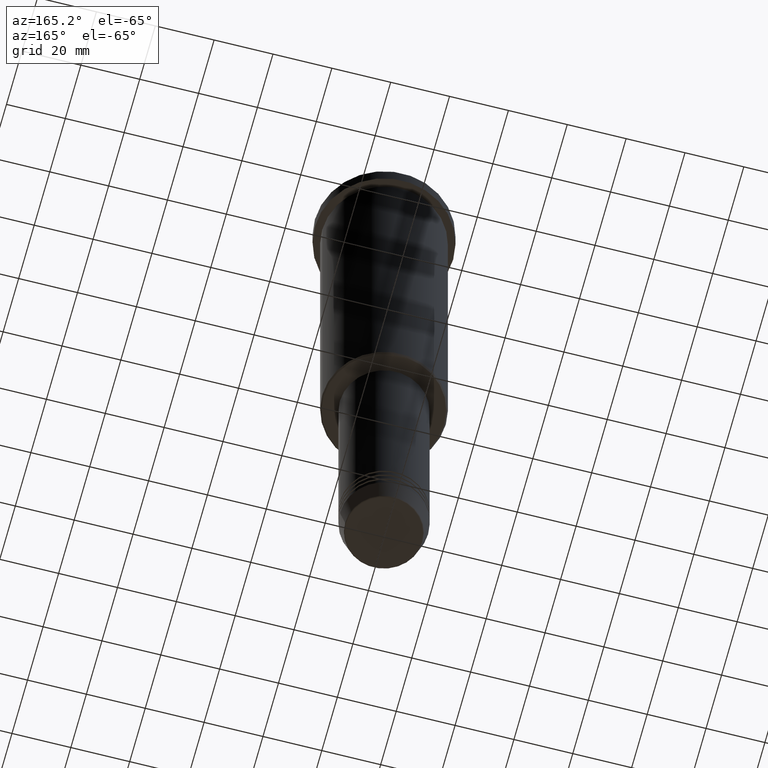
[diagram: clean part render]
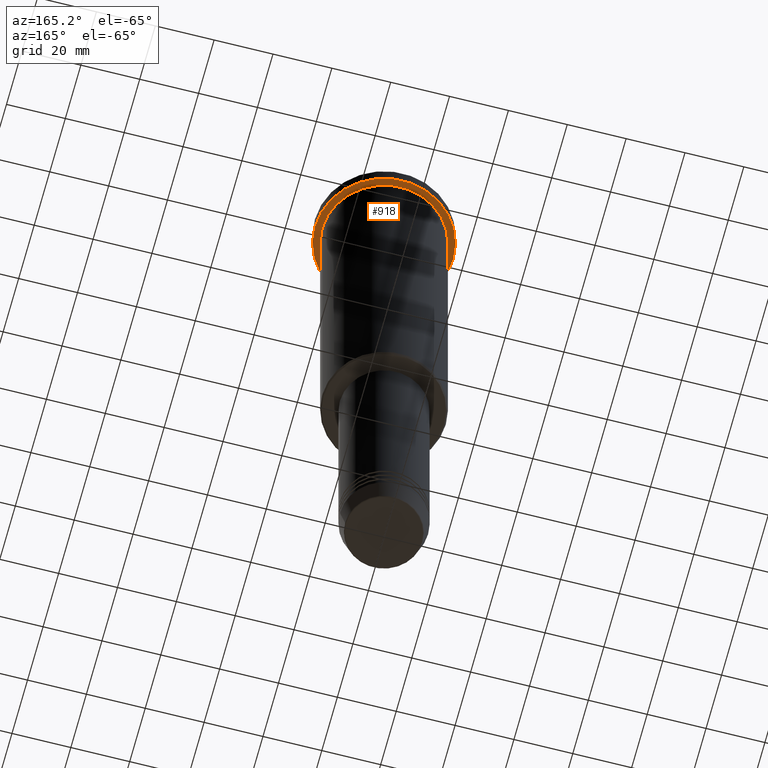
[diagram: same view with one face highlighted and labeled with its STEP entity id]
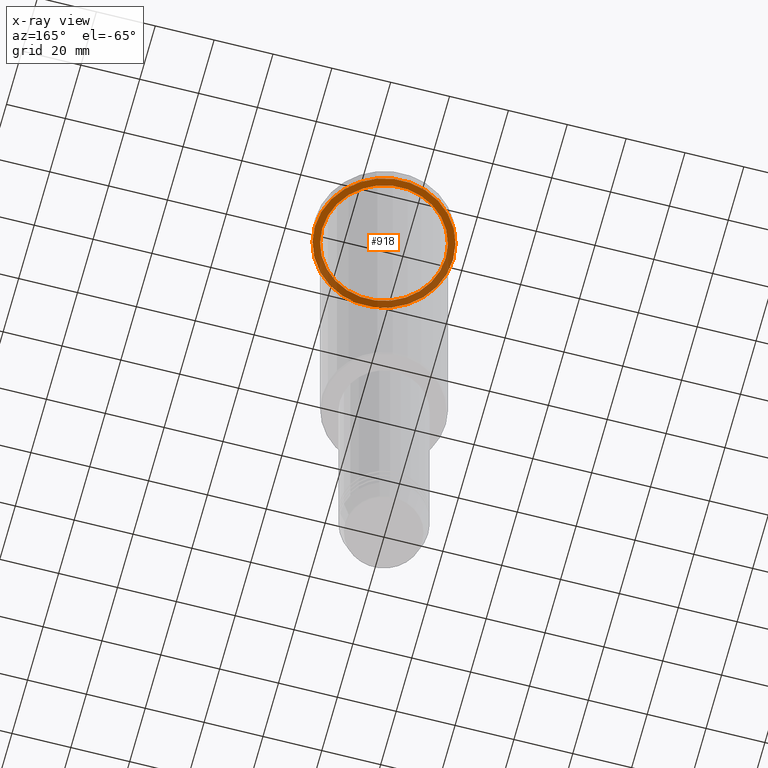
[diagram: x-ray of the same camera — body ghosted, the highlighted face saturated]
A machine part, auxiliary view. The second image highlights one B-rep face of the part: STEP entity #918.
The next image is the same camera in x-ray: the body ghosted, the highlighted face saturated — about 39% of this face is hidden behind the body in this view.
In plain terms, the highlighted planar face has unit normal (0, 0, -1).
Its self-contained STEP definition (entity closure, byte-faithful):
#30 = AXIS2_PLACEMENT_3D ( 'NONE', #386, #648, #1092 ) ;
#42 = EDGE_CURVE ( 'NONE', #107, #220, #1103, .T. ) ;
#47 = DIRECTION ( 'NONE',  ( 0.000000000000000000, 0.000000000000000000, -1.000000000000000000 ) ) ;
#76 = CARTESIAN_POINT ( 'NONE',  ( -21.00000000000000000, 0.000000000000000000, -5.999999999999994671 ) ) ;
#88 = EDGE_CURVE ( 'NONE', #220, #107, #1012, .T. ) ;
#107 = VERTEX_POINT ( 'NONE', #1049 ) ;
#188 = CARTESIAN_POINT ( 'NONE',  ( 0.000000000000000000, 0.000000000000000000, -5.999999999999994671 ) ) ;
#203 = DIRECTION ( 'NONE',  ( -1.000000000000000000, 0.000000000000000000, 0.000000000000000000 ) ) ;
#220 = VERTEX_POINT ( 'NONE', #302 ) ;
#284 = CARTESIAN_POINT ( 'NONE',  ( 0.000000000000000000, 0.000000000000000000, -5.999999999999994671 ) ) ;
#302 = CARTESIAN_POINT ( 'NONE',  ( 23.50000000000000000, 0.000000000000000000, -5.999999999999994671 ) ) ;
#377 = ORIENTED_EDGE ( 'NONE', *, *, #1158, .T. ) ;
#386 = CARTESIAN_POINT ( 'NONE',  ( 0.000000000000000000, 0.000000000000000000, -5.999999999999994671 ) ) ;
#429 = ORIENTED_EDGE ( 'NONE', *, *, #511, .T. ) ;
#467 = VERTEX_POINT ( 'NONE', #743 ) ;
#486 = EDGE_LOOP ( 'NONE', ( #429, #377 ) ) ;
#511 = EDGE_CURVE ( 'NONE', #778, #467, #916, .T. ) ;
#540 = CIRCLE ( 'NONE', #30, 21.00000000000000000 ) ;
#544 = DIRECTION ( 'NONE',  ( -0.000000000000000000, -0.000000000000000000, 1.000000000000000000 ) ) ;
#588 = CARTESIAN_POINT ( 'NONE',  ( 0.000000000000000000, 0.000000000000000000, -5.999999999999994671 ) ) ;
#594 = AXIS2_PLACEMENT_3D ( 'NONE', #188, #544, #903 ) ;
#607 = FACE_OUTER_BOUND ( 'NONE', #793, .T. ) ;
#648 = DIRECTION ( 'NONE',  ( -0.000000000000000000, -0.000000000000000000, 1.000000000000000000 ) ) ;
#685 = CARTESIAN_POINT ( 'NONE',  ( 0.000000000000000000, 23.50000000000000000, -5.999999999999994671 ) ) ;
#688 = DIRECTION ( 'NONE',  ( -1.000000000000000000, 0.000000000000000000, -0.000000000000000000 ) ) ;
#743 = CARTESIAN_POINT ( 'NONE',  ( 21.00000000000000000, 2.571758278209441661E-15, -5.999999999999994671 ) ) ;
#745 = ORIENTED_EDGE ( 'NONE', *, *, #42, .F. ) ;
#767 = AXIS2_PLACEMENT_3D ( 'NONE', #284, #1008, #888 ) ;
#778 = VERTEX_POINT ( 'NONE', #76 ) ;
#793 = EDGE_LOOP ( 'NONE', ( #798, #745 ) ) ;
#798 = ORIENTED_EDGE ( 'NONE', *, *, #88, .F. ) ;
#821 = AXIS2_PLACEMENT_3D ( 'NONE', #685, #47, #688 ) ;
#880 = FACE_BOUND ( 'NONE', #486, .T. ) ;
#888 = DIRECTION ( 'NONE',  ( 1.000000000000000000, 0.000000000000000000, 0.000000000000000000 ) ) ;
#903 = DIRECTION ( 'NONE',  ( 1.000000000000000000, 0.000000000000000000, 0.000000000000000000 ) ) ;
#916 = CIRCLE ( 'NONE', #1084, 21.00000000000000000 ) ;
#918 = ADVANCED_FACE ( 'NONE', ( #880, #607 ), #1135, .T. ) ;
#943 = DIRECTION ( 'NONE',  ( -0.000000000000000000, -0.000000000000000000, 1.000000000000000000 ) ) ;
#1008 = DIRECTION ( 'NONE',  ( -0.000000000000000000, -0.000000000000000000, 1.000000000000000000 ) ) ;
#1012 = CIRCLE ( 'NONE', #594, 23.50000000000000000 ) ;
#1049 = CARTESIAN_POINT ( 'NONE',  ( -23.50000000000000000, 2.877919977996280320E-15, -5.999999999999994671 ) ) ;
#1084 = AXIS2_PLACEMENT_3D ( 'NONE', #588, #943, #203 ) ;
#1092 = DIRECTION ( 'NONE',  ( -1.000000000000000000, 0.000000000000000000, 0.000000000000000000 ) ) ;
#1103 = CIRCLE ( 'NONE', #767, 23.50000000000000000 ) ;
#1135 = PLANE ( 'NONE',  #821 ) ;
#1158 = EDGE_CURVE ( 'NONE', #467, #778, #540, .T. ) ;